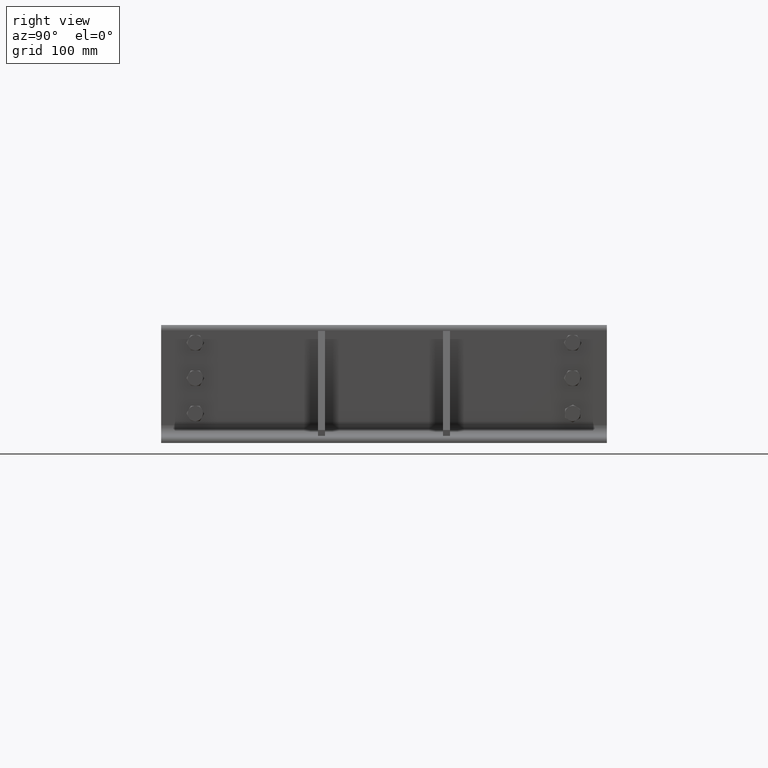
[diagram: clean part render]
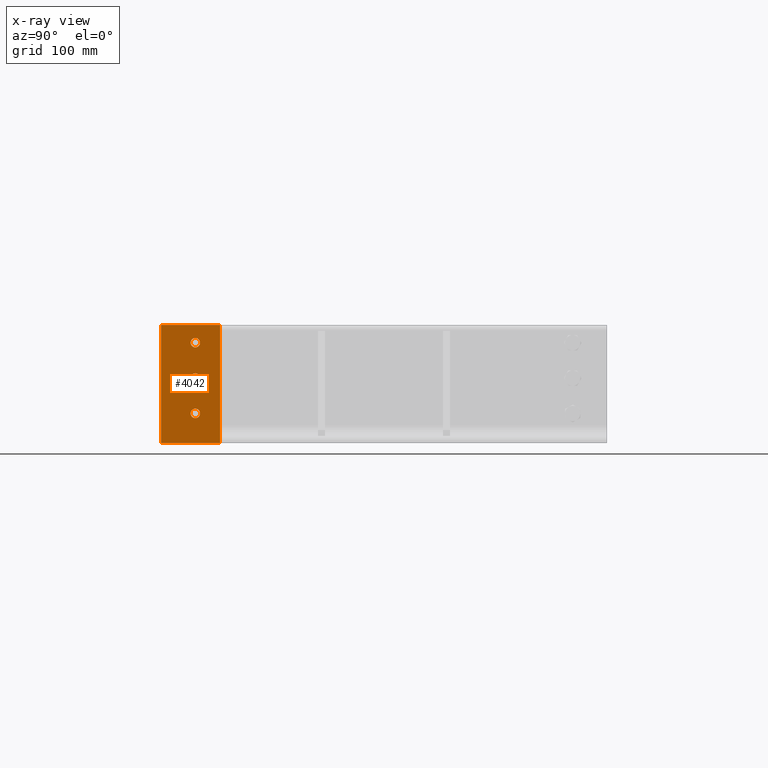
[diagram: x-ray — body ghosted, one internal face saturated and labeled with its STEP entity id]
A machine part, right view, then the same camera in x-ray: the body is ghosted and one INTERNAL B-rep face — a face not visible from any outside direction — is saturated and labeled: STEP entity #4042.
In plain terms, the highlighted planar face has unit normal (1, -0, -0).
Its self-contained STEP definition (entity closure, byte-faithful):
#3830=CARTESIAN_POINT('',(30.999999999999996,0.35,3.999999999999997));
#3831=VERTEX_POINT('',#3830);
#3832=CARTESIAN_POINT('',(34.999999999999993,0.350000000000001,3.999999999999997));
#3833=DIRECTION('',(0.0,-1.0,0.0));
#3834=DIRECTION('',(-1.0,0.0,0.0));
#3835=AXIS2_PLACEMENT_3D('',#3832,#3833,#3834);
#3836=CIRCLE('',#3835,4.0);
#3837=EDGE_CURVE('',#3831,#3831,#3836,.T.);
#3858=CARTESIAN_POINT('',(0.999999999999996,0.35,4.000000000000007));
#3859=VERTEX_POINT('',#3858);
#3860=CARTESIAN_POINT('',(4.999999999999996,0.350000000000001,4.000000000000007));
#3861=DIRECTION('',(0.0,-1.0,0.0));
#3862=DIRECTION('',(-1.0,0.0,0.0));
#3863=AXIS2_PLACEMENT_3D('',#3860,#3861,#3862);
#3864=CIRCLE('',#3863,4.0);
#3865=EDGE_CURVE('',#3859,#3859,#3864,.T.);
#3886=CARTESIAN_POINT('',(-29.000000000000004,0.35,4.000000000000016));
#3887=VERTEX_POINT('',#3886);
#3888=CARTESIAN_POINT('',(-25.000000000000004,0.350000000000001,4.000000000000016));
#3889=DIRECTION('',(0.0,-1.0,0.0));
#3890=DIRECTION('',(-1.0,0.0,0.0));
#3891=AXIS2_PLACEMENT_3D('',#3888,#3889,#3890);
#3892=CIRCLE('',#3891,4.0);
#3893=EDGE_CURVE('',#3887,#3887,#3892,.T.);
#3913=CARTESIAN_POINT('',(-50.0,0.35,25.000000000000028));
#3914=VERTEX_POINT('',#3913);
#3921=CARTESIAN_POINT('',(-50.0,0.35,-24.999999999999996));
#3922=VERTEX_POINT('',#3921);
#3923=CARTESIAN_POINT('',(-50.0,0.35,-24.999999999999986));
#3924=DIRECTION('',(0.0,0.0,1.0));
#3925=VECTOR('',#3924,50.000000000000014);
#3926=LINE('',#3923,#3925);
#3927=EDGE_CURVE('',#3922,#3914,#3926,.T.);
#3952=CARTESIAN_POINT('',(50.0,0.35,-24.999999999999996));
#3953=VERTEX_POINT('',#3952);
#3954=CARTESIAN_POINT('',(50.0,0.35,-24.999999999999996));
#3955=DIRECTION('',(-1.0,0.0,0.0));
#3956=VECTOR('',#3955,100.0);
#3957=LINE('',#3954,#3956);
#3958=EDGE_CURVE('',#3953,#3922,#3957,.T.);
#3983=CARTESIAN_POINT('',(50.0,0.35,24.999999999999996));
#3984=VERTEX_POINT('',#3983);
#3985=CARTESIAN_POINT('',(50.0,0.35,24.999999999999996));
#3986=DIRECTION('',(0.0,0.0,-1.0));
#3987=VECTOR('',#3986,49.999999999999993);
#3988=LINE('',#3985,#3987);
#3989=EDGE_CURVE('',#3984,#3953,#3988,.T.);
#4012=CARTESIAN_POINT('',(-50.0,0.35,25.000000000000028));
#4013=DIRECTION('',(1.0,0.0,0.0));
#4014=VECTOR('',#4013,100.0);
#4015=LINE('',#4012,#4014);
#4016=EDGE_CURVE('',#3914,#3984,#4015,.T.);
#4022=CARTESIAN_POINT('',(-3.552714E-015,0.35,7.105427E-015));
#4023=DIRECTION('',(0.0,1.0,0.0));
#4024=DIRECTION('',(0.0,0.0,1.0));
#4025=AXIS2_PLACEMENT_3D('',#4022,#4023,#4024);
#4026=PLANE('',#4025);
#4027=ORIENTED_EDGE('',*,*,#4016,.T.);
#4028=ORIENTED_EDGE('',*,*,#3989,.T.);
#4029=ORIENTED_EDGE('',*,*,#3958,.T.);
#4030=ORIENTED_EDGE('',*,*,#3927,.T.);
#4031=EDGE_LOOP('',(#4027,#4028,#4029,#4030));
#4032=FACE_OUTER_BOUND('',#4031,.T.);
#4033=ORIENTED_EDGE('',*,*,#3837,.T.);
#4034=EDGE_LOOP('',(#4033));
#4035=FACE_BOUND('',#4034,.T.);
#4036=ORIENTED_EDGE('',*,*,#3865,.T.);
#4037=EDGE_LOOP('',(#4036));
#4038=FACE_BOUND('',#4037,.T.);
#4039=ORIENTED_EDGE('',*,*,#3893,.T.);
#4040=EDGE_LOOP('',(#4039));
#4041=FACE_BOUND('',#4040,.T.);
#4042=ADVANCED_FACE('',(#4032,#4035,#4038,#4041),#4026,.T.);